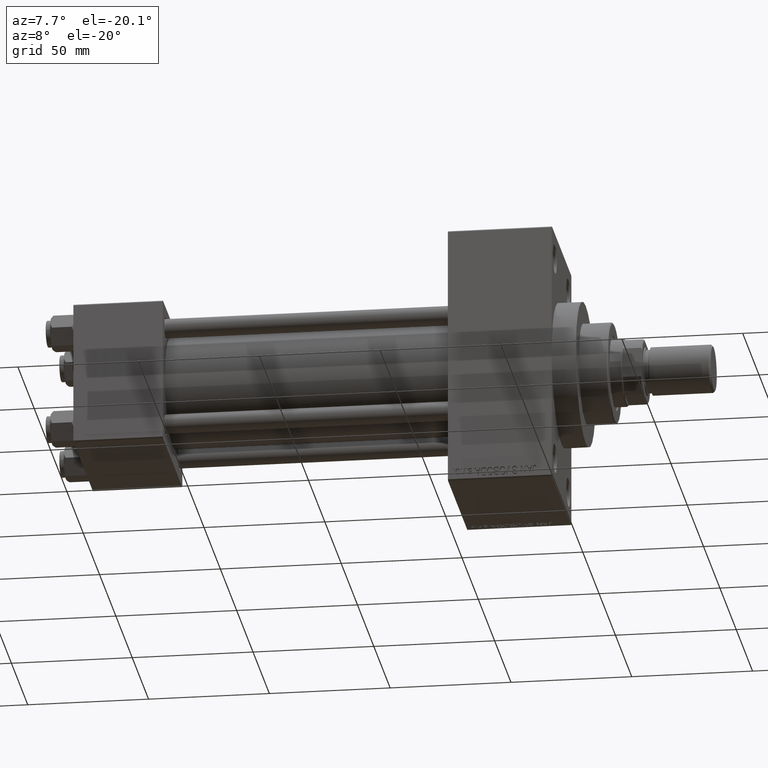
[diagram: clean part render]
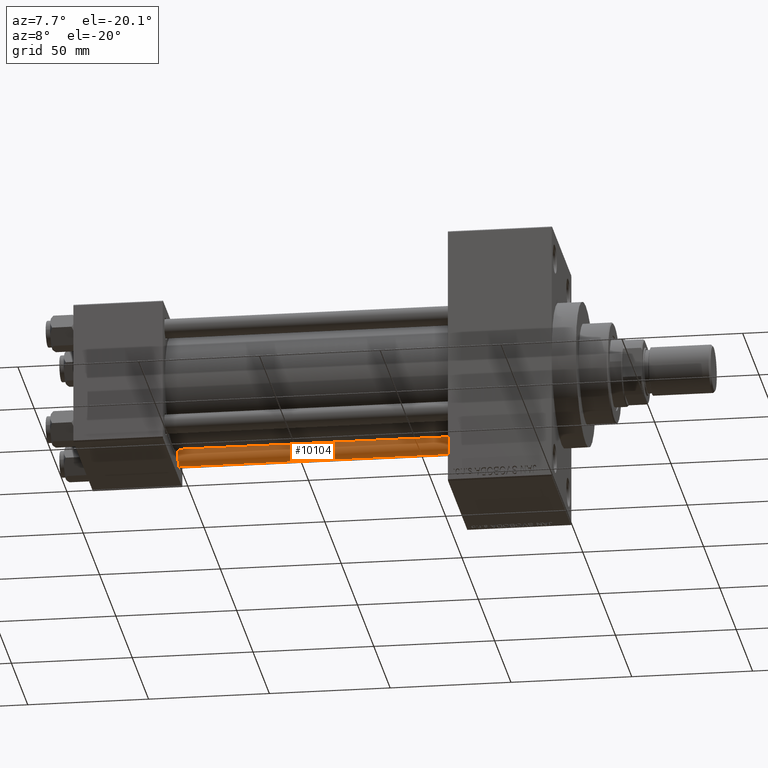
[diagram: same view with one face highlighted and labeled with its STEP entity id]
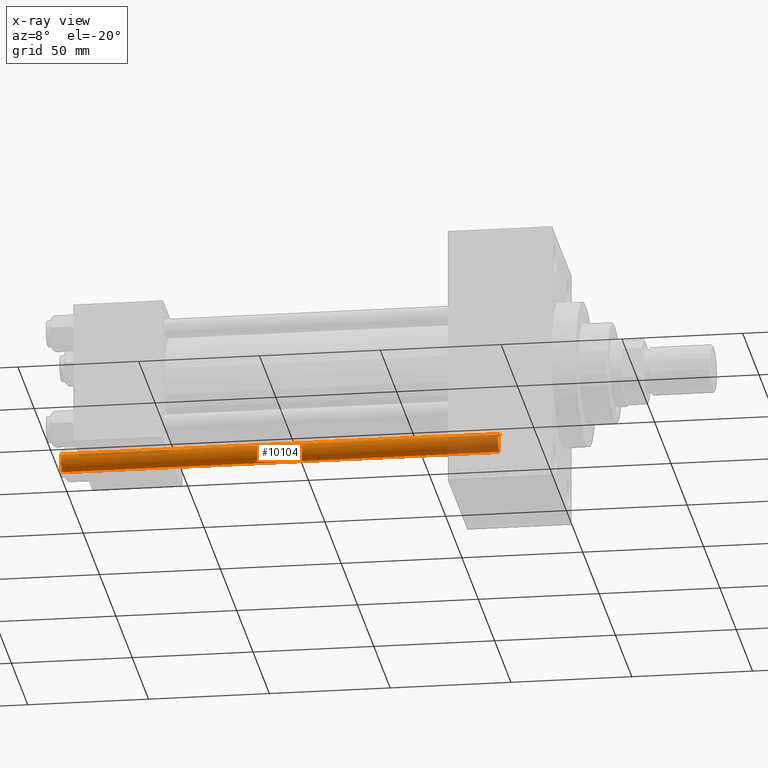
[diagram: x-ray of the same camera — body ghosted, the highlighted face saturated]
A machine part, auxiliary view. The second image highlights one B-rep face of the part: STEP entity #10104.
The next image is the same camera in x-ray: the body ghosted, the highlighted face saturated — about 15% of this face is hidden behind the body in this view.
In plain terms, the highlighted cylindrical surface (edge-blend (fillet) strip) has radius 4 mm, axis along (1, -0, 0).
Its self-contained STEP definition (entity closure, byte-faithful):
#2756 = CIRCLE ( 'NONE', #7387, 4.000000000000000000 ) ;
#4293 = ORIENTED_EDGE ( 'NONE', *, *, #20797, .F. ) ;
#4667 = LINE ( 'NONE', #34304, #32927 ) ;
#6338 = VECTOR ( 'NONE', #46730, 1000.000000000000000 ) ;
#6573 = CARTESIAN_POINT ( 'NONE',  ( 0.000000000000000000, 0.000000000000000000, 182.0000000000000000 ) ) ;
#7387 = AXIS2_PLACEMENT_3D ( 'NONE', #46249, #8654, #12730 ) ;
#8352 = CIRCLE ( 'NONE', #46067, 4.000000000000000000 ) ;
#8654 = DIRECTION ( 'NONE',  ( 0.000000000000000000, 0.000000000000000000, -1.000000000000000000 ) ) ;
#9199 = VERTEX_POINT ( 'NONE', #47556 ) ;
#9351 = CARTESIAN_POINT ( 'NONE',  ( -4.000000000000000000, 0.000000000000000000, 181.5000000000000284 ) ) ;
#10104 = ADVANCED_FACE ( 'NONE', ( #11154 ), #14255, .T. ) ;
#11154 = FACE_OUTER_BOUND ( 'NONE', #30322, .T. ) ;
#12730 = DIRECTION ( 'NONE',  ( 1.000000000000000000, 0.000000000000000000, 0.000000000000000000 ) ) ;
#13427 = CARTESIAN_POINT ( 'NONE',  ( -4.000000000000000000, 0.000000000000000000, 182.0000000000000000 ) ) ;
#13623 = EDGE_CURVE ( 'NONE', #40295, #16107, #2756, .T. ) ;
#14146 = DIRECTION ( 'NONE',  ( 1.000000000000000000, 0.000000000000000000, 0.000000000000000000 ) ) ;
#14196 = AXIS2_PLACEMENT_3D ( 'NONE', #6573, #43956, #35968 ) ;
#14255 = CYLINDRICAL_SURFACE ( 'NONE', #14196, 4.000000000000000000 ) ;
#15282 = CARTESIAN_POINT ( 'NONE',  ( -4.000000000000000000, 0.000000000000000000, 0.4999999999999726885 ) ) ;
#16107 = VERTEX_POINT ( 'NONE', #9351 ) ;
#18631 = EDGE_CURVE ( 'NONE', #29456, #9199, #8352, .T. ) ;
#19350 = DIRECTION ( 'NONE',  ( -0.000000000000000000, -0.000000000000000000, -1.000000000000000000 ) ) ;
#20797 = EDGE_CURVE ( 'NONE', #40295, #9199, #4667, .T. ) ;
#28622 = CARTESIAN_POINT ( 'NONE',  ( 0.000000000000000000, 0.000000000000000000, 0.4999999999999726885 ) ) ;
#29456 = VERTEX_POINT ( 'NONE', #15282 ) ;
#30322 = EDGE_LOOP ( 'NONE', ( #4293, #46295, #44798, #40891 ) ) ;
#32847 = EDGE_CURVE ( 'NONE', #16107, #29456, #42880, .T. ) ;
#32927 = VECTOR ( 'NONE', #19350, 1000.000000000000000 ) ;
#34304 = CARTESIAN_POINT ( 'NONE',  ( 4.000000000000000000, 4.898587196589412829E-16, 182.0000000000000000 ) ) ;
#35968 = DIRECTION ( 'NONE',  ( -1.000000000000000000, 0.000000000000000000, 0.000000000000000000 ) ) ;
#38088 = CARTESIAN_POINT ( 'NONE',  ( 4.000000000000000000, 4.898587196589412829E-16, 181.5000000000000284 ) ) ;
#39724 = DIRECTION ( 'NONE',  ( -0.000000000000000000, -0.000000000000000000, 1.000000000000000000 ) ) ;
#40295 = VERTEX_POINT ( 'NONE', #38088 ) ;
#40891 = ORIENTED_EDGE ( 'NONE', *, *, #18631, .T. ) ;
#42880 = LINE ( 'NONE', #13427, #6338 ) ;
#43956 = DIRECTION ( 'NONE',  ( -0.000000000000000000, -0.000000000000000000, -1.000000000000000000 ) ) ;
#44798 = ORIENTED_EDGE ( 'NONE', *, *, #32847, .T. ) ;
#46067 = AXIS2_PLACEMENT_3D ( 'NONE', #28622, #39724, #14146 ) ;
#46249 = CARTESIAN_POINT ( 'NONE',  ( 0.000000000000000000, 0.000000000000000000, 181.5000000000000284 ) ) ;
#46295 = ORIENTED_EDGE ( 'NONE', *, *, #13623, .T. ) ;
#46730 = DIRECTION ( 'NONE',  ( -0.000000000000000000, -0.000000000000000000, -1.000000000000000000 ) ) ;
#47556 = CARTESIAN_POINT ( 'NONE',  ( 4.000000000000000000, 4.898587196589412829E-16, 0.4999999999999726885 ) ) ;